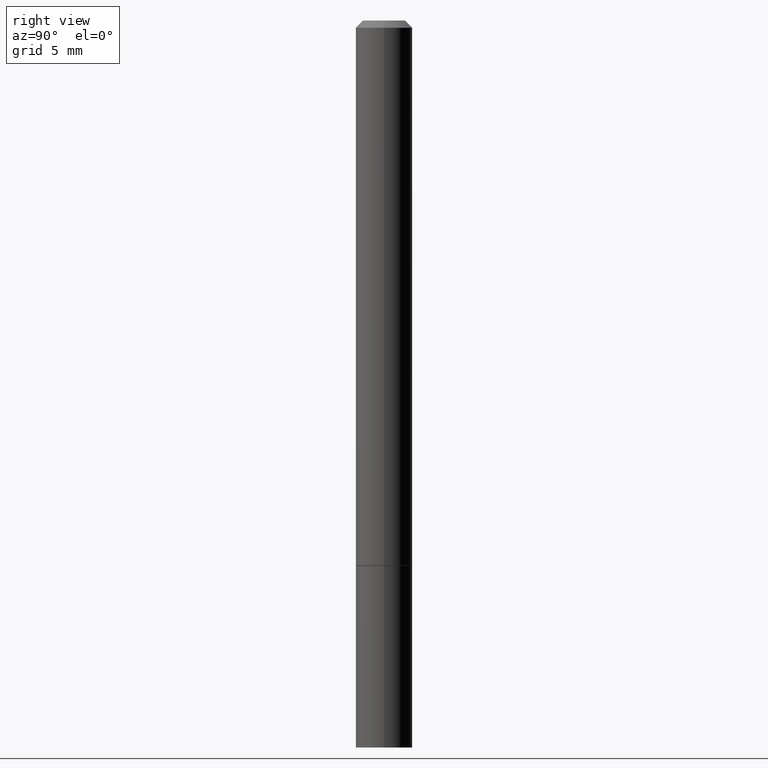
[diagram: clean part render]
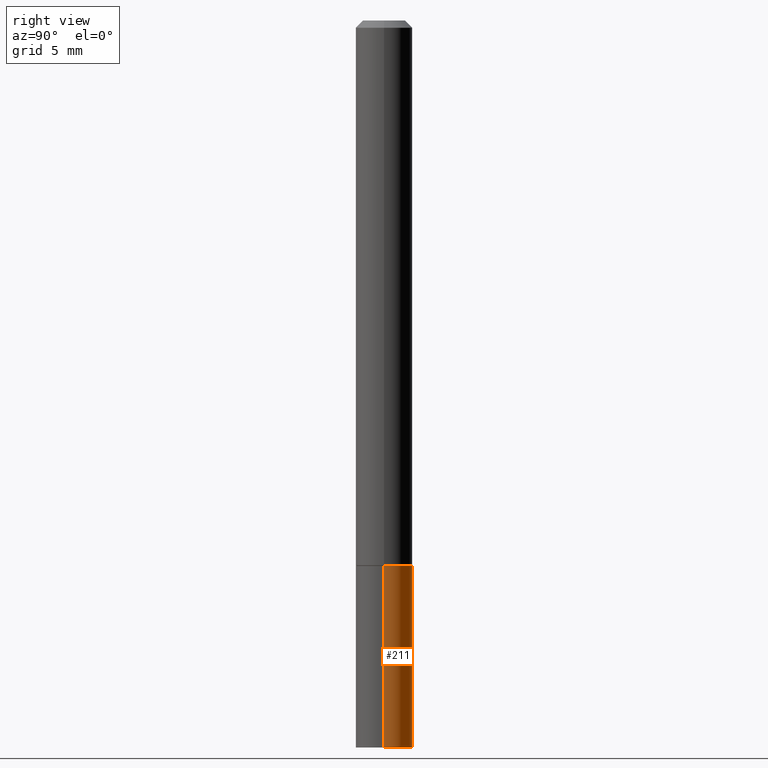
[diagram: same view with one face highlighted and labeled with its STEP entity id]
A machine part, right view. The second image highlights one B-rep face of the part: STEP entity #211.
In plain terms, the highlighted cylindrical surface (edge-blend (fillet) strip) has radius 1.9837 mm, axis along (-0, 0, 1).
Its self-contained STEP definition (entity closure, byte-faithful):
#3 = AXIS2_PLACEMENT_3D ( 'NONE', #119, #22, #182 ) ;
#12 = LINE ( 'NONE', #373, #55 ) ;
#15 = VERTEX_POINT ( 'NONE', #120 ) ;
#18 = EDGE_CURVE ( 'NONE', #200, #15, #203, .T. ) ;
#22 = DIRECTION ( 'NONE',  ( -2.445468806185136597E-29, 3.491481338843145583E-15, 1.000000000000000000 ) ) ;
#35 = CARTESIAN_POINT ( 'NONE',  ( -0.07810000000000000275, -5.555158466346866012E-15, -1.499999999999999778 ) ) ;
#48 = ORIENTED_EDGE ( 'NONE', *, *, #94, .F. ) ;
#55 = VECTOR ( 'NONE', #106, 39.37007874015748143 ) ;
#62 = VECTOR ( 'NONE', #177, 39.37007874015748143 ) ;
#80 = DIRECTION ( 'NONE',  ( 1.000000000000000000, -6.982962677686266711E-15, 4.876176775795935232E-29 ) ) ;
#87 = CARTESIAN_POINT ( 'NONE',  ( 0.07810000000000000275, -5.453693851272974364E-16, 3.808294061896625703E-30 ) ) ;
#94 = EDGE_CURVE ( 'NONE', #15, #165, #121, .T. ) ;
#103 = CYLINDRICAL_SURFACE ( 'NONE', #253, 0.07810000000000000275 ) ;
#106 = DIRECTION ( 'NONE',  ( -2.445468806185136877E-29, 3.491481338843145188E-15, 1.000000000000000000 ) ) ;
#107 = CIRCLE ( 'NONE', #3, 0.07810000000000000275 ) ;
#119 = CARTESIAN_POINT ( 'NONE',  ( 4.890937612370273194E-29, -6.982962677686291165E-15, -2.000000000000000000 ) ) ;
#120 = CARTESIAN_POINT ( 'NONE',  ( 0.07810000000000000275, -5.782591393392014824E-15, -1.499999999999999778 ) ) ;
#121 = CIRCLE ( 'NONE', #342, 0.07810000000000000275 ) ;
#129 = CARTESIAN_POINT ( 'NONE',  ( 3.668203209277704335E-29, -5.237222008264717388E-15, -1.499999999999999778 ) ) ;
#165 = VERTEX_POINT ( 'NONE', #35 ) ;
#177 = DIRECTION ( 'NONE',  ( -2.445468806185136877E-29, 3.491481338843145188E-15, 1.000000000000000000 ) ) ;
#182 = DIRECTION ( 'NONE',  ( 1.000000000000000000, -6.982962677686266711E-15, 0.000000000000000000 ) ) ;
#183 = CARTESIAN_POINT ( 'NONE',  ( -0.07809999999999991949, -6.437593292558994518E-15, -2.000000000000000000 ) ) ;
#195 = ORIENTED_EDGE ( 'NONE', *, *, #249, .T. ) ;
#200 = VERTEX_POINT ( 'NONE', #376 ) ;
#203 = LINE ( 'NONE', #87, #62 ) ;
#211 = ADVANCED_FACE ( 'NONE', ( #370 ), #103, .T. ) ;
#225 = ORIENTED_EDGE ( 'NONE', *, *, #355, .T. ) ;
#231 = CARTESIAN_POINT ( 'NONE',  ( 0.000000000000000000, 0.000000000000000000, 0.000000000000000000 ) ) ;
#245 = DIRECTION ( 'NONE',  ( -2.445468806185136597E-29, 3.491481338843145583E-15, 1.000000000000000000 ) ) ;
#249 = EDGE_CURVE ( 'NONE', #374, #165, #12, .T. ) ;
#253 = AXIS2_PLACEMENT_3D ( 'NONE', #231, #349, #80 ) ;
#296 = EDGE_LOOP ( 'NONE', ( #225, #195, #48, #305 ) ) ;
#305 = ORIENTED_EDGE ( 'NONE', *, *, #18, .F. ) ;
#335 = DIRECTION ( 'NONE',  ( 1.000000000000000000, -6.982962677686266711E-15, 0.000000000000000000 ) ) ;
#342 = AXIS2_PLACEMENT_3D ( 'NONE', #129, #245, #335 ) ;
#349 = DIRECTION ( 'NONE',  ( -2.445468806185136597E-29, 3.491481338843145583E-15, 1.000000000000000000 ) ) ;
#355 = EDGE_CURVE ( 'NONE', #200, #374, #107, .T. ) ;
#370 = FACE_OUTER_BOUND ( 'NONE', #296, .T. ) ;
#373 = CARTESIAN_POINT ( 'NONE',  ( -0.07810000000000000275, 5.549338766286382647E-16, -3.841688305489081275E-30 ) ) ;
#374 = VERTEX_POINT ( 'NONE', #183 ) ;
#376 = CARTESIAN_POINT ( 'NONE',  ( 0.07809999999999991949, -7.518767571312248168E-15, -2.000000000000000000 ) ) ;